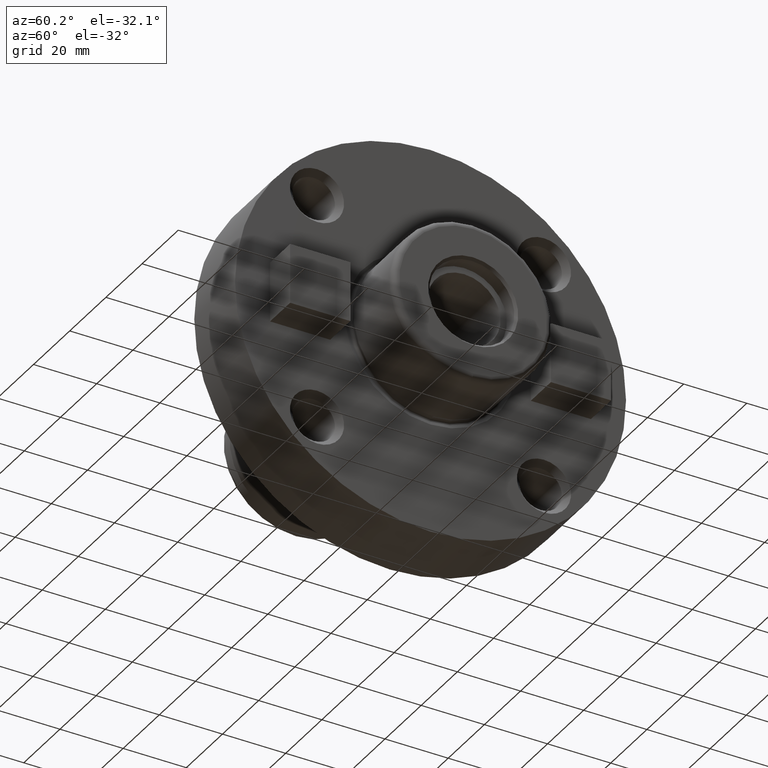
[diagram: clean part render]
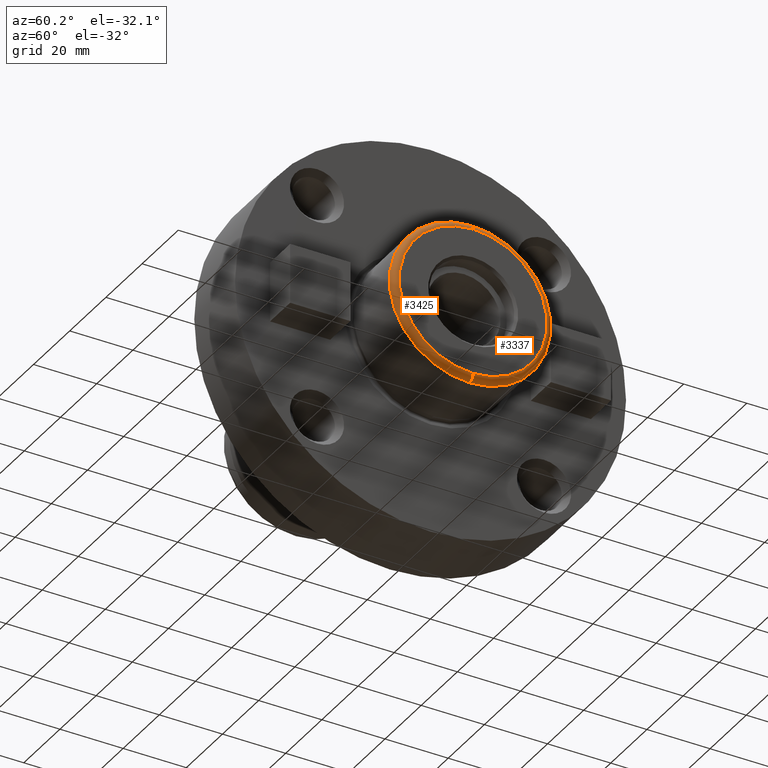
[diagram: same view with one multi-face feature highlighted, each face labeled with its STEP entity id]
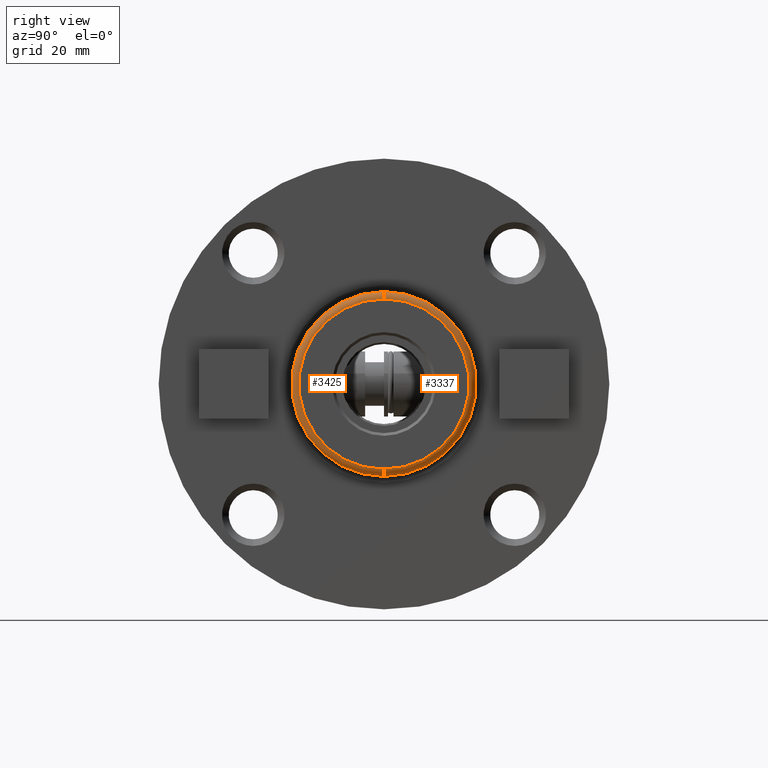
[diagram: same view with one multi-face feature highlighted, each face labeled with its STEP entity id]
A machine part, auxiliary view. The highlighted faces form ONE feature: a constant-radius fillet chain: 2 tangent blend faces with common blend radius 2 mm. The faces share edges in the B-rep.
A second angle (right view) of the same feature is appended — it is thin or edge-on in the first view.
Their STEP definitions:
[1] entity #3425 (Torus):
#231 = AXIS2_PLACEMENT_3D ( 'NONE', #3550, #3549, #3508 ) ;
#310 = AXIS2_PLACEMENT_3D ( 'NONE', #3062, #3060, #3059 ) ;
#314 = AXIS2_PLACEMENT_3D ( 'NONE', #3072, #3051, #3050 ) ;
#1169 = CARTESIAN_POINT ( 'NONE',  ( 96.59999999999999400, 0.0000000000000000000, 0.0000000000000000000 ) ) ;
#1172 = CARTESIAN_POINT ( 'NONE',  ( 98.59999999999999400, 0.0000000000000000000, 0.0000000000000000000 ) ) ;
#1176 = DIRECTION ( 'NONE',  ( -1.000000000000000000, -0.0000000000000000000, -0.0000000000000000000 ) ) ;
#1177 = DIRECTION ( 'NONE',  ( 0.0000000000000000000, 0.0000000000000000000, 1.000000000000000000 ) ) ;
#1179 = DIRECTION ( 'NONE',  ( -1.000000000000000000, -0.0000000000000000000, -0.0000000000000000000 ) ) ;
#1180 = DIRECTION ( 'NONE',  ( 0.0000000000000000000, 0.0000000000000000000, 1.000000000000000000 ) ) ;
#1744 = CIRCLE ( 'NONE', #310, 2.000000000000001800 ) ;
#1748 = CIRCLE ( 'NONE', #314, 2.000000000000001800 ) ;
#1907 = CIRCLE ( 'NONE', #4551, 25.39600000000000100 ) ;
#1908 = CIRCLE ( 'NONE', #4552, 23.39600000000000100 ) ;
#2816 = ORIENTED_EDGE ( 'NONE', *, *, #5274, .T. ) ;
#2818 = ORIENTED_EDGE ( 'NONE', *, *, #5125, .F. ) ;
#2819 = ORIENTED_EDGE ( 'NONE', *, *, #5127, .T. ) ;
#2820 = ORIENTED_EDGE ( 'NONE', *, *, #5273, .F. ) ;
#3050 = DIRECTION ( 'NONE',  ( 0.0000000000000000000, 0.0000000000000000000, -1.000000000000000000 ) ) ;
#3051 = DIRECTION ( 'NONE',  ( 0.0000000000000000000, -1.000000000000000000, 0.0000000000000000000 ) ) ;
#3059 = DIRECTION ( 'NONE',  ( 0.0000000000000000000, -1.224646799147353500E-016, 1.000000000000000000 ) ) ;
#3060 = DIRECTION ( 'NONE',  ( -0.0000000000000000000, 1.000000000000000000, 1.224646799147353200E-016 ) ) ;
#3062 = CARTESIAN_POINT ( 'NONE',  ( 96.59999999999999400, 2.865183651285147400E-015, -23.39600000000000100 ) ) ;
#3072 = CARTESIAN_POINT ( 'NONE',  ( 96.59999999999999400, 0.0000000000000000000, 23.39600000000000100 ) ) ;
#3425 = ADVANCED_FACE ( 'NONE', ( #4114 ), #4118, .T. ) ;
#3508 = DIRECTION ( 'NONE',  ( 0.0000000000000000000, 0.0000000000000000000, 1.000000000000000000 ) ) ;
#3549 = DIRECTION ( 'NONE',  ( -1.000000000000000000, -0.0000000000000000000, -0.0000000000000000000 ) ) ;
#3550 = CARTESIAN_POINT ( 'NONE',  ( 96.59999999999999400, 0.0000000000000000000, 0.0000000000000000000 ) ) ;
#3765 = EDGE_LOOP ( 'NONE', ( #2818, #2816, #2819, #2820 ) ) ;
#4114 = FACE_OUTER_BOUND ( 'NONE', #3765, .T. ) ;
#4118 = TOROIDAL_SURFACE ( 'NONE', #231, 23.39600000000000100, 2.000000000000001800 ) ;
#4403 = VERTEX_POINT ( 'NONE', #4883 ) ;
#4404 = VERTEX_POINT ( 'NONE', #4885 ) ;
#4408 = VERTEX_POINT ( 'NONE', #4891 ) ;
#4409 = VERTEX_POINT ( 'NONE', #4892 ) ;
#4551 = AXIS2_PLACEMENT_3D ( 'NONE', #1169, #1176, #1177 ) ;
#4552 = AXIS2_PLACEMENT_3D ( 'NONE', #1172, #1179, #1180 ) ;
#4883 = CARTESIAN_POINT ( 'NONE',  ( 98.59999999999999400, 2.987648331199882900E-015, -23.39600000000000100 ) ) ;
#4885 = CARTESIAN_POINT ( 'NONE',  ( 98.59999999999999400, 0.0000000000000000000, 23.39600000000000100 ) ) ;
#4891 = CARTESIAN_POINT ( 'NONE',  ( 96.59999999999999400, 3.110113011114618500E-015, -25.39600000000000100 ) ) ;
#4892 = CARTESIAN_POINT ( 'NONE',  ( 96.59999999999999400, 0.0000000000000000000, 25.39600000000000100 ) ) ;
#5125 = EDGE_CURVE ( 'NONE', #4403, #4408, #1744, .T. ) ;
#5127 = EDGE_CURVE ( 'NONE', #4404, #4409, #1748, .T. ) ;
#5273 = EDGE_CURVE ( 'NONE', #4408, #4409, #1907, .T. ) ;
#5274 = EDGE_CURVE ( 'NONE', #4403, #4404, #1908, .T. ) ;
[2] entity #3337 (Torus):
#144 = AXIS2_PLACEMENT_3D ( 'NONE', #2301, #2187, #2303 ) ;
#310 = AXIS2_PLACEMENT_3D ( 'NONE', #3062, #3060, #3059 ) ;
#312 = AXIS2_PLACEMENT_3D ( 'NONE', #3068, #3067, #3066 ) ;
#313 = AXIS2_PLACEMENT_3D ( 'NONE', #3057, #3055, #3054 ) ;
#314 = AXIS2_PLACEMENT_3D ( 'NONE', #3072, #3051, #3050 ) ;
#1544 = ORIENTED_EDGE ( 'NONE', *, *, #5127, .F. ) ;
#1565 = ORIENTED_EDGE ( 'NONE', *, *, #5125, .T. ) ;
#1566 = ORIENTED_EDGE ( 'NONE', *, *, #5126, .T. ) ;
#1568 = ORIENTED_EDGE ( 'NONE', *, *, #5123, .F. ) ;
#1598 = EDGE_LOOP ( 'NONE', ( #1566, #1565, #1568, #1544 ) ) ;
#1742 = CIRCLE ( 'NONE', #312, 25.39600000000000100 ) ;
#1744 = CIRCLE ( 'NONE', #310, 2.000000000000001800 ) ;
#1746 = CIRCLE ( 'NONE', #313, 23.39600000000000100 ) ;
#1748 = CIRCLE ( 'NONE', #314, 2.000000000000001800 ) ;
#2187 = DIRECTION ( 'NONE',  ( -1.000000000000000000, -0.0000000000000000000, -0.0000000000000000000 ) ) ;
#2301 = CARTESIAN_POINT ( 'NONE',  ( 96.59999999999999400, 0.0000000000000000000, 0.0000000000000000000 ) ) ;
#2303 = DIRECTION ( 'NONE',  ( 0.0000000000000000000, 0.0000000000000000000, 1.000000000000000000 ) ) ;
#3050 = DIRECTION ( 'NONE',  ( 0.0000000000000000000, 0.0000000000000000000, -1.000000000000000000 ) ) ;
#3051 = DIRECTION ( 'NONE',  ( 0.0000000000000000000, -1.000000000000000000, 0.0000000000000000000 ) ) ;
#3054 = DIRECTION ( 'NONE',  ( 0.0000000000000000000, 0.0000000000000000000, 1.000000000000000000 ) ) ;
#3055 = DIRECTION ( 'NONE',  ( -1.000000000000000000, -0.0000000000000000000, -0.0000000000000000000 ) ) ;
#3057 = CARTESIAN_POINT ( 'NONE',  ( 98.59999999999999400, 0.0000000000000000000, 0.0000000000000000000 ) ) ;
#3059 = DIRECTION ( 'NONE',  ( 0.0000000000000000000, -1.224646799147353500E-016, 1.000000000000000000 ) ) ;
#3060 = DIRECTION ( 'NONE',  ( -0.0000000000000000000, 1.000000000000000000, 1.224646799147353200E-016 ) ) ;
#3062 = CARTESIAN_POINT ( 'NONE',  ( 96.59999999999999400, 2.865183651285147400E-015, -23.39600000000000100 ) ) ;
#3066 = DIRECTION ( 'NONE',  ( 0.0000000000000000000, 0.0000000000000000000, 1.000000000000000000 ) ) ;
#3067 = DIRECTION ( 'NONE',  ( -1.000000000000000000, -0.0000000000000000000, -0.0000000000000000000 ) ) ;
#3068 = CARTESIAN_POINT ( 'NONE',  ( 96.59999999999999400, 0.0000000000000000000, 0.0000000000000000000 ) ) ;
#3072 = CARTESIAN_POINT ( 'NONE',  ( 96.59999999999999400, 0.0000000000000000000, 23.39600000000000100 ) ) ;
#3337 = ADVANCED_FACE ( 'NONE', ( #3951 ), #3955, .T. ) ;
#3951 = FACE_OUTER_BOUND ( 'NONE', #1598, .T. ) ;
#3955 = TOROIDAL_SURFACE ( 'NONE', #144, 23.39600000000000100, 2.000000000000001800 ) ;
#4403 = VERTEX_POINT ( 'NONE', #4883 ) ;
#4404 = VERTEX_POINT ( 'NONE', #4885 ) ;
#4408 = VERTEX_POINT ( 'NONE', #4891 ) ;
#4409 = VERTEX_POINT ( 'NONE', #4892 ) ;
#4883 = CARTESIAN_POINT ( 'NONE',  ( 98.59999999999999400, 2.987648331199882900E-015, -23.39600000000000100 ) ) ;
#4885 = CARTESIAN_POINT ( 'NONE',  ( 98.59999999999999400, 0.0000000000000000000, 23.39600000000000100 ) ) ;
#4891 = CARTESIAN_POINT ( 'NONE',  ( 96.59999999999999400, 3.110113011114618500E-015, -25.39600000000000100 ) ) ;
#4892 = CARTESIAN_POINT ( 'NONE',  ( 96.59999999999999400, 0.0000000000000000000, 25.39600000000000100 ) ) ;
#5123 = EDGE_CURVE ( 'NONE', #4409, #4408, #1742, .T. ) ;
#5125 = EDGE_CURVE ( 'NONE', #4403, #4408, #1744, .T. ) ;
#5126 = EDGE_CURVE ( 'NONE', #4404, #4403, #1746, .T. ) ;
#5127 = EDGE_CURVE ( 'NONE', #4404, #4409, #1748, .T. ) ;